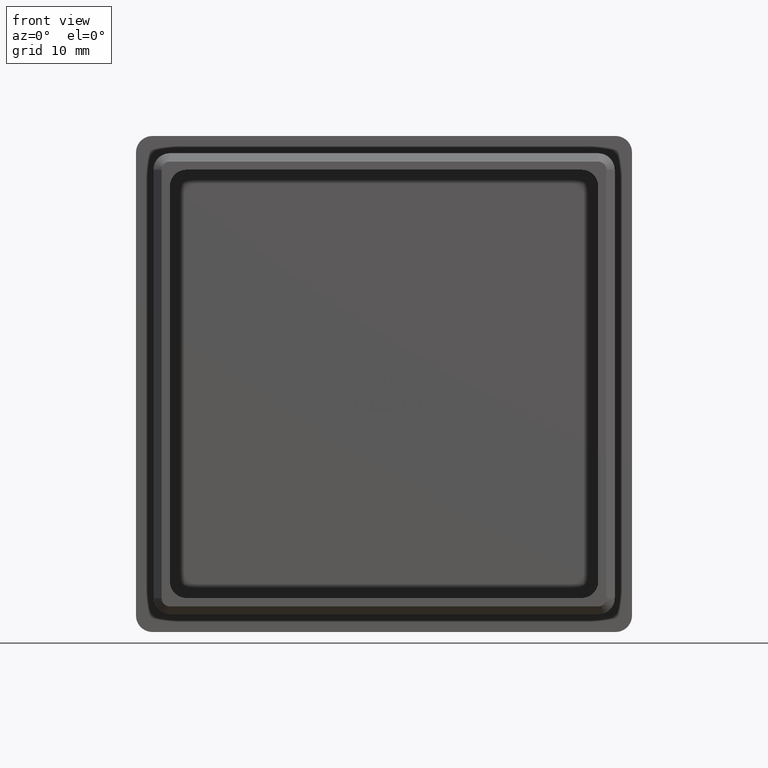
[diagram: clean part render]
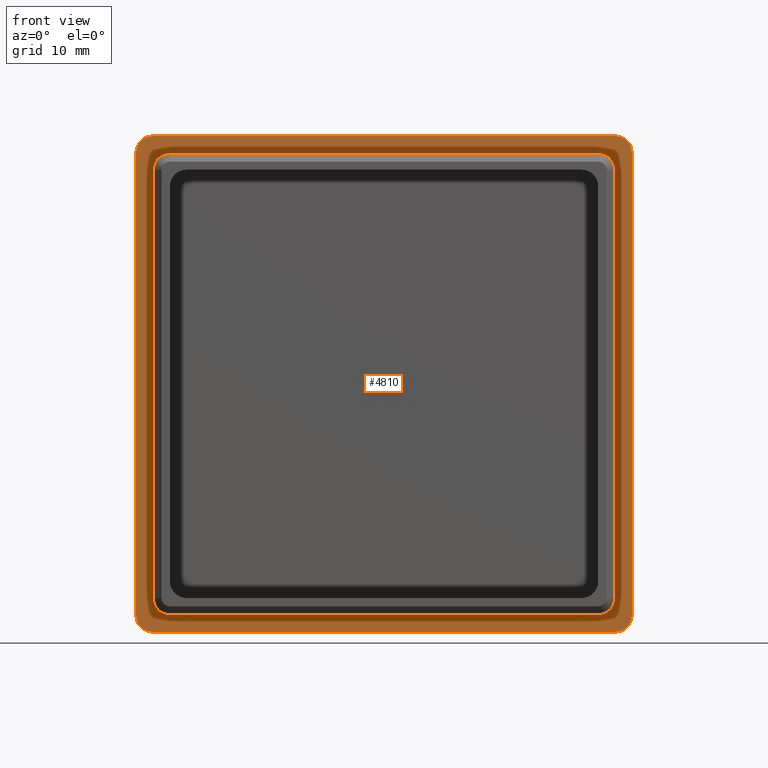
[diagram: same view with one face highlighted and labeled with its STEP entity id]
A machine part, front view. The second image highlights one B-rep face of the part: STEP entity #4810.
In plain terms, the highlighted planar face has unit normal (0, 1, 0).
Its self-contained STEP definition (entity closure, byte-faithful):
#50 = LINE ( 'NONE', #2379, #11183 ) ;
#98 = VECTOR ( 'NONE', #4027, 1000.000000000000000 ) ;
#259 = ORIENTED_EDGE ( 'NONE', *, *, #8657, .F. ) ;
#301 = VECTOR ( 'NONE', #12000, 1000.000000000000000 ) ;
#374 = EDGE_CURVE ( 'NONE', #13143, #13655, #9106, .T. ) ;
#594 = VERTEX_POINT ( 'NONE', #10063 ) ;
#605 = VECTOR ( 'NONE', #7180, 1000.000000000000000 ) ;
#627 = DIRECTION ( 'NONE',  ( -0.0000000000000000000, -1.000000000000000000, -0.0000000000000000000 ) ) ;
#644 = LINE ( 'NONE', #4505, #98 ) ;
#695 = VERTEX_POINT ( 'NONE', #9217 ) ;
#854 = AXIS2_PLACEMENT_3D ( 'NONE', #4122, #5845, #2403 ) ;
#898 = ORIENTED_EDGE ( 'NONE', *, *, #8946, .F. ) ;
#935 = DIRECTION ( 'NONE',  ( -0.0000000000000000000, -1.000000000000000000, -0.0000000000000000000 ) ) ;
#978 = CIRCLE ( 'NONE', #5739, 2.000000000000001800 ) ;
#1004 = CARTESIAN_POINT ( 'NONE',  ( -27.99999999999999600, 0.0000000000000000000, 29.99999999999999600 ) ) ;
#1097 = CARTESIAN_POINT ( 'NONE',  ( 25.89999999999999100, 0.0000000000000000000, 25.89999999999999100 ) ) ;
#1303 = EDGE_CURVE ( 'NONE', #3250, #5212, #1980, .T. ) ;
#1346 = CARTESIAN_POINT ( 'NONE',  ( 27.99999999999999300, 0.0000000000000000000, -29.99999999999999600 ) ) ;
#1494 = CARTESIAN_POINT ( 'NONE',  ( -25.89999999999999100, 0.0000000000000000000, -25.89999999999999100 ) ) ;
#1558 = EDGE_CURVE ( 'NONE', #6720, #3489, #6575, .T. ) ;
#1950 = CARTESIAN_POINT ( 'NONE',  ( -27.89999999999999500, 0.0000000000000000000, 27.89999999999999500 ) ) ;
#1980 = LINE ( 'NONE', #11970, #10899 ) ;
#2030 = DIRECTION ( 'NONE',  ( 0.0000000000000000000, 1.000000000000000000, 0.0000000000000000000 ) ) ;
#2134 = DIRECTION ( 'NONE',  ( -1.000000000000000000, -0.0000000000000000000, -0.0000000000000000000 ) ) ;
#2179 = DIRECTION ( 'NONE',  ( 0.0000000000000000000, 0.0000000000000000000, 1.000000000000000000 ) ) ;
#2197 = DIRECTION ( 'NONE',  ( 0.0000000000000000000, 0.0000000000000000000, 1.000000000000000000 ) ) ;
#2232 = ORIENTED_EDGE ( 'NONE', *, *, #374, .T. ) ;
#2247 = ORIENTED_EDGE ( 'NONE', *, *, #14773, .T. ) ;
#2379 = CARTESIAN_POINT ( 'NONE',  ( 27.89999999999999500, 0.0000000000000000000, 27.89999999999999500 ) ) ;
#2403 = DIRECTION ( 'NONE',  ( 0.0000000000000000000, 0.0000000000000000000, 1.000000000000000000 ) ) ;
#2436 = VERTEX_POINT ( 'NONE', #13257 ) ;
#2671 = CARTESIAN_POINT ( 'NONE',  ( -28.00000000000000400, 0.0000000000000000000, -29.99999999999999600 ) ) ;
#2687 = CARTESIAN_POINT ( 'NONE',  ( 0.0000000000000000000, 0.0000000000000000000, 0.0000000000000000000 ) ) ;
#3096 = DIRECTION ( 'NONE',  ( 0.0000000000000000000, 0.0000000000000000000, 1.000000000000000000 ) ) ;
#3209 = LINE ( 'NONE', #11765, #5953 ) ;
#3235 = ORIENTED_EDGE ( 'NONE', *, *, #14193, .F. ) ;
#3250 = VERTEX_POINT ( 'NONE', #1346 ) ;
#3418 = CARTESIAN_POINT ( 'NONE',  ( 29.99999999999999600, 0.0000000000000000000, -29.99999999999999600 ) ) ;
#3489 = VERTEX_POINT ( 'NONE', #11376 ) ;
#3490 = ORIENTED_EDGE ( 'NONE', *, *, #7356, .F. ) ;
#3554 = EDGE_CURVE ( 'NONE', #695, #3489, #644, .T. ) ;
#3619 = ORIENTED_EDGE ( 'NONE', *, *, #6433, .T. ) ;
#3646 = CARTESIAN_POINT ( 'NONE',  ( -30.00000000000000400, 0.0000000000000000000, -29.99999999999999600 ) ) ;
#3697 = ORIENTED_EDGE ( 'NONE', *, *, #13820, .T. ) ;
#4027 = DIRECTION ( 'NONE',  ( 1.000000000000000000, 0.0000000000000000000, 0.0000000000000000000 ) ) ;
#4084 = DIRECTION ( 'NONE',  ( 0.0000000000000000000, 0.0000000000000000000, 1.000000000000000000 ) ) ;
#4122 = CARTESIAN_POINT ( 'NONE',  ( 25.89999999999999100, 0.0000000000000000000, -25.89999999999999100 ) ) ;
#4333 = CARTESIAN_POINT ( 'NONE',  ( -28.00000000000000400, 0.0000000000000000000, -27.99999999999999600 ) ) ;
#4505 = CARTESIAN_POINT ( 'NONE',  ( -27.89999999999999500, -0.0000000000000000000, -27.89999999999999500 ) ) ;
#4545 = CARTESIAN_POINT ( 'NONE',  ( 27.99999999999999300, 0.0000000000000000000, -27.99999999999999600 ) ) ;
#4592 = DIRECTION ( 'NONE',  ( -5.782411586589358600E-017, -0.0000000000000000000, -1.000000000000000000 ) ) ;
#4704 = FACE_BOUND ( 'NONE', #4819, .T. ) ;
#4784 = CIRCLE ( 'NONE', #13113, 1.999999999999998200 ) ;
#4810 = ADVANCED_FACE ( 'NONE', ( #5981, #4704 ), #9854, .F. ) ;
#4819 = EDGE_LOOP ( 'NONE', ( #3490, #10554, #5683, #13735, #3235, #10479, #14981, #2232 ) ) ;
#4837 = EDGE_CURVE ( 'NONE', #695, #6349, #13408, .T. ) ;
#4926 = DIRECTION ( 'NONE',  ( -0.0000000000000000000, -1.000000000000000000, -0.0000000000000000000 ) ) ;
#5068 = DIRECTION ( 'NONE',  ( 0.0000000000000000000, 1.000000000000000000, 0.0000000000000000000 ) ) ;
#5074 = CARTESIAN_POINT ( 'NONE',  ( 30.00000000000000000, 0.0000000000000000000, 27.99999999999998600 ) ) ;
#5212 = VERTEX_POINT ( 'NONE', #2671 ) ;
#5342 = CARTESIAN_POINT ( 'NONE',  ( -30.00000000000000400, 0.0000000000000000000, -27.99999999999999600 ) ) ;
#5683 = ORIENTED_EDGE ( 'NONE', *, *, #3554, .F. ) ;
#5739 = AXIS2_PLACEMENT_3D ( 'NONE', #10176, #2030, #2179 ) ;
#5805 = CARTESIAN_POINT ( 'NONE',  ( -27.89999999999999500, 0.0000000000000000000, 25.89999999999999100 ) ) ;
#5845 = DIRECTION ( 'NONE',  ( 0.0000000000000000000, 1.000000000000000000, 0.0000000000000000000 ) ) ;
#5953 = VECTOR ( 'NONE', #9391, 1000.000000000000000 ) ;
#5981 = FACE_OUTER_BOUND ( 'NONE', #9065, .T. ) ;
#6349 = VERTEX_POINT ( 'NONE', #13522 ) ;
#6433 = EDGE_CURVE ( 'NONE', #3250, #11390, #12655, .T. ) ;
#6443 = ORIENTED_EDGE ( 'NONE', *, *, #1303, .F. ) ;
#6575 = CIRCLE ( 'NONE', #854, 2.000000000000001800 ) ;
#6720 = VERTEX_POINT ( 'NONE', #12243 ) ;
#7180 = DIRECTION ( 'NONE',  ( 1.156482317317871700E-016, 0.0000000000000000000, 1.000000000000000000 ) ) ;
#7356 = EDGE_CURVE ( 'NONE', #6720, #13655, #50, .T. ) ;
#7419 = CARTESIAN_POINT ( 'NONE',  ( -27.99999999999999600, 0.0000000000000000000, 27.99999999999999600 ) ) ;
#7756 = VECTOR ( 'NONE', #2134, 1000.000000000000000 ) ;
#7843 = CARTESIAN_POINT ( 'NONE',  ( 29.99999999999999600, 0.0000000000000000000, -27.99999999999999600 ) ) ;
#7908 = DIRECTION ( 'NONE',  ( 0.0000000000000000000, 0.0000000000000000000, 1.000000000000000000 ) ) ;
#7965 = EDGE_CURVE ( 'NONE', #13143, #594, #11557, .T. ) ;
#8036 = DIRECTION ( 'NONE',  ( 0.0000000000000000000, 1.000000000000000000, 0.0000000000000000000 ) ) ;
#8376 = CARTESIAN_POINT ( 'NONE',  ( 27.89999999999999500, 0.0000000000000000000, 25.89999999999999100 ) ) ;
#8416 = AXIS2_PLACEMENT_3D ( 'NONE', #2687, #5068, #14426 ) ;
#8657 = EDGE_CURVE ( 'NONE', #12972, #12853, #12643, .T. ) ;
#8946 = EDGE_CURVE ( 'NONE', #13569, #2436, #3209, .T. ) ;
#9065 = EDGE_LOOP ( 'NONE', ( #6443, #3619, #9240, #3697, #898, #11111, #259, #2247 ) ) ;
#9106 = CIRCLE ( 'NONE', #12074, 2.000000000000001800 ) ;
#9114 = AXIS2_PLACEMENT_3D ( 'NONE', #7419, #4926, #14234 ) ;
#9217 = CARTESIAN_POINT ( 'NONE',  ( -25.89999999999999100, 0.0000000000000000000, -27.89999999999999500 ) ) ;
#9240 = ORIENTED_EDGE ( 'NONE', *, *, #14471, .F. ) ;
#9299 = CARTESIAN_POINT ( 'NONE',  ( -29.99999999999999600, 0.0000000000000000000, 27.99999999999998600 ) ) ;
#9391 = DIRECTION ( 'NONE',  ( 1.000000000000000000, 0.0000000000000000000, 0.0000000000000000000 ) ) ;
#9577 = AXIS2_PLACEMENT_3D ( 'NONE', #4545, #935, #7908 ) ;
#9854 = PLANE ( 'NONE',  #8416 ) ;
#9913 = CARTESIAN_POINT ( 'NONE',  ( 28.00000000000000000, 0.0000000000000000000, 28.00000000000000000 ) ) ;
#10063 = CARTESIAN_POINT ( 'NONE',  ( -25.89999999999999100, 0.0000000000000000000, 27.89999999999999500 ) ) ;
#10176 = CARTESIAN_POINT ( 'NONE',  ( -25.89999999999999100, 0.0000000000000000000, 25.89999999999999100 ) ) ;
#10479 = ORIENTED_EDGE ( 'NONE', *, *, #14334, .T. ) ;
#10554 = ORIENTED_EDGE ( 'NONE', *, *, #1558, .T. ) ;
#10756 = VERTEX_POINT ( 'NONE', #5805 ) ;
#10899 = VECTOR ( 'NONE', #11920, 1000.000000000000000 ) ;
#10916 = CARTESIAN_POINT ( 'NONE',  ( 25.89999999999999100, 0.0000000000000000000, 27.89999999999999500 ) ) ;
#11101 = LINE ( 'NONE', #3418, #12376 ) ;
#11111 = ORIENTED_EDGE ( 'NONE', *, *, #11593, .T. ) ;
#11183 = VECTOR ( 'NONE', #12872, 1000.000000000000000 ) ;
#11316 = DIRECTION ( 'NONE',  ( -0.0000000000000000000, -1.000000000000000000, -0.0000000000000000000 ) ) ;
#11376 = CARTESIAN_POINT ( 'NONE',  ( 25.89999999999999100, 0.0000000000000000000, -27.89999999999999500 ) ) ;
#11390 = VERTEX_POINT ( 'NONE', #7843 ) ;
#11557 = LINE ( 'NONE', #11584, #7756 ) ;
#11584 = CARTESIAN_POINT ( 'NONE',  ( -27.89999999999999500, 0.0000000000000000000, 27.89999999999999500 ) ) ;
#11593 = EDGE_CURVE ( 'NONE', #13569, #12853, #12432, .T. ) ;
#11765 = CARTESIAN_POINT ( 'NONE',  ( -29.99999999999999600, 0.0000000000000000000, 29.99999999999999600 ) ) ;
#11920 = DIRECTION ( 'NONE',  ( -1.000000000000000000, -0.0000000000000000000, -0.0000000000000000000 ) ) ;
#11970 = CARTESIAN_POINT ( 'NONE',  ( -30.00000000000000400, 0.0000000000000000000, -29.99999999999999600 ) ) ;
#12000 = DIRECTION ( 'NONE',  ( 0.0000000000000000000, -0.0000000000000000000, -1.000000000000000000 ) ) ;
#12074 = AXIS2_PLACEMENT_3D ( 'NONE', #1097, #8036, #2197 ) ;
#12243 = CARTESIAN_POINT ( 'NONE',  ( 27.89999999999999500, 0.0000000000000000000, -25.89999999999999100 ) ) ;
#12376 = VECTOR ( 'NONE', #4592, 1000.000000000000000 ) ;
#12432 = CIRCLE ( 'NONE', #9114, 2.000000000000001800 ) ;
#12643 = LINE ( 'NONE', #3646, #605 ) ;
#12655 = CIRCLE ( 'NONE', #9577, 2.000000000000001800 ) ;
#12804 = CIRCLE ( 'NONE', #13790, 2.000000000000001800 ) ;
#12853 = VERTEX_POINT ( 'NONE', #9299 ) ;
#12872 = DIRECTION ( 'NONE',  ( -0.0000000000000000000, -0.0000000000000000000, 1.000000000000000000 ) ) ;
#12972 = VERTEX_POINT ( 'NONE', #5342 ) ;
#13089 = LINE ( 'NONE', #1950, #301 ) ;
#13113 = AXIS2_PLACEMENT_3D ( 'NONE', #9913, #627, #14634 ) ;
#13143 = VERTEX_POINT ( 'NONE', #10916 ) ;
#13257 = CARTESIAN_POINT ( 'NONE',  ( 28.00000000000000000, 0.0000000000000000000, 29.99999999999999600 ) ) ;
#13408 = CIRCLE ( 'NONE', #13835, 2.000000000000001800 ) ;
#13522 = CARTESIAN_POINT ( 'NONE',  ( -27.89999999999999500, 0.0000000000000000000, -25.89999999999999100 ) ) ;
#13569 = VERTEX_POINT ( 'NONE', #1004 ) ;
#13655 = VERTEX_POINT ( 'NONE', #8376 ) ;
#13735 = ORIENTED_EDGE ( 'NONE', *, *, #4837, .T. ) ;
#13767 = VERTEX_POINT ( 'NONE', #5074 ) ;
#13790 = AXIS2_PLACEMENT_3D ( 'NONE', #4333, #11316, #3096 ) ;
#13820 = EDGE_CURVE ( 'NONE', #13767, #2436, #4784, .T. ) ;
#13835 = AXIS2_PLACEMENT_3D ( 'NONE', #1494, #14532, #4084 ) ;
#14193 = EDGE_CURVE ( 'NONE', #10756, #6349, #13089, .T. ) ;
#14234 = DIRECTION ( 'NONE',  ( 0.0000000000000000000, 0.0000000000000000000, 1.000000000000000000 ) ) ;
#14334 = EDGE_CURVE ( 'NONE', #10756, #594, #978, .T. ) ;
#14426 = DIRECTION ( 'NONE',  ( 0.0000000000000000000, -0.0000000000000000000, 1.000000000000000000 ) ) ;
#14471 = EDGE_CURVE ( 'NONE', #13767, #11390, #11101, .T. ) ;
#14532 = DIRECTION ( 'NONE',  ( 0.0000000000000000000, 1.000000000000000000, 0.0000000000000000000 ) ) ;
#14634 = DIRECTION ( 'NONE',  ( 0.0000000000000000000, 0.0000000000000000000, 1.000000000000000000 ) ) ;
#14773 = EDGE_CURVE ( 'NONE', #12972, #5212, #12804, .T. ) ;
#14981 = ORIENTED_EDGE ( 'NONE', *, *, #7965, .F. ) ;